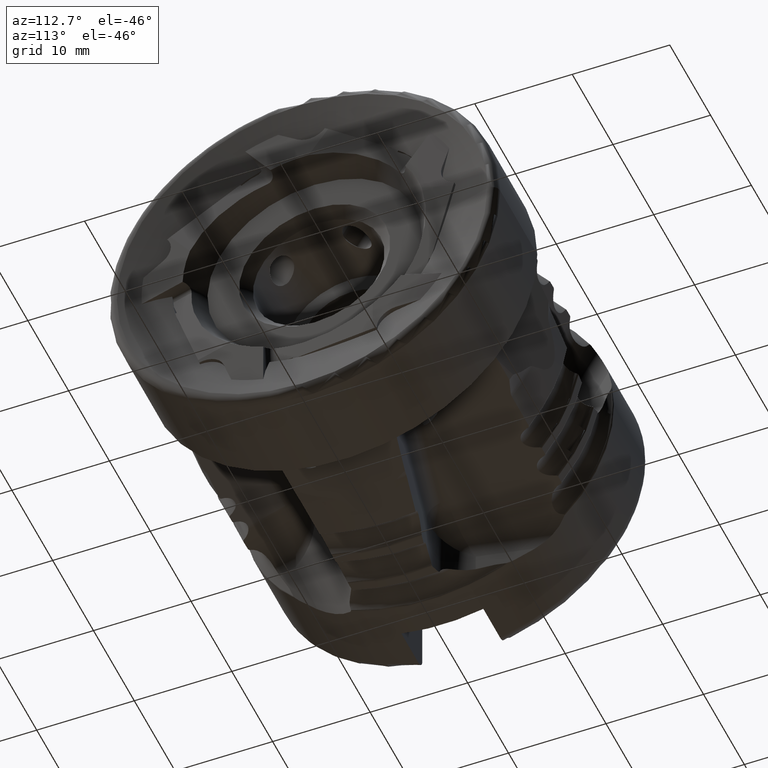
[diagram: clean part render]
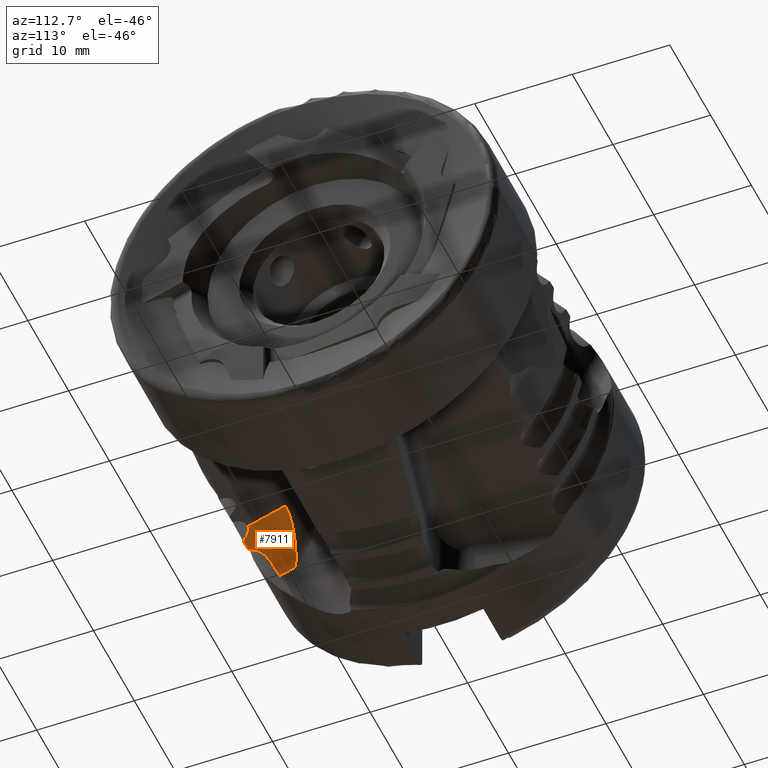
[diagram: same view with one face highlighted and labeled with its STEP entity id]
A machine part, auxiliary view. The second image highlights one B-rep face of the part: STEP entity #7911.
In plain terms, the highlighted cylindrical surface (partial cylindrical patch) has radius 3.94 mm, axis along (0, 0.9511, 0.309).
Its self-contained STEP definition (entity closure, byte-faithful):
#33 = CARTESIAN_POINT ( 'NONE',  ( -28.56440808432969500, -15.85264359010885300, -8.383159691719308500 ) ) ;
#153 = CARTESIAN_POINT ( 'NONE',  ( -26.41002967370479800, -17.33414100165144900, -7.779956795712893200 ) ) ;
#310 = CARTESIAN_POINT ( 'NONE',  ( -29.71508046417885400, -15.39688914835973700, -10.39244339586552400 ) ) ;
#627 = VERTEX_POINT ( 'NONE', #5507 ) ;
#710 = CARTESIAN_POINT ( 'NONE',  ( -26.25360595343298800, -17.09142602524426000, -7.681861429233998200 ) ) ;
#739 = CARTESIAN_POINT ( 'NONE',  ( -25.69751953581768700, -16.50883507427392200, -7.474238577948152200 ) ) ;
#839 = EDGE_CURVE ( 'NONE', #1136, #3382, #5505, .T. ) ;
#874 = CARTESIAN_POINT ( 'NONE',  ( -26.49059737205868000, -17.32876244822566400, -7.791918378227796500 ) ) ;
#892 = CARTESIAN_POINT ( 'NONE',  ( -28.19384683758306000, -16.12713403850896300, -8.148863625765258700 ) ) ;
#1109 = EDGE_CURVE ( 'NONE', #627, #1851, #8360, .T. ) ;
#1136 = VERTEX_POINT ( 'NONE', #7441 ) ;
#1226 = LINE ( 'NONE', #1905, #6155 ) ;
#1591 = CARTESIAN_POINT ( 'NONE',  ( -25.31579957513992700, -16.33219888893014400, -7.452534699864648000 ) ) ;
#1732 = CARTESIAN_POINT ( 'NONE',  ( -27.83836801739790800, -16.48063775773570700, -8.020539063007737100 ) ) ;
#1851 = VERTEX_POINT ( 'NONE', #874 ) ;
#1905 = CARTESIAN_POINT ( 'NONE',  ( -25.04200685546572600, -12.43006090190876000, -6.237559048921020200 ) ) ;
#1948 = CARTESIAN_POINT ( 'NONE',  ( -27.30940262794131000, -17.23456217364929800, -7.998116445927551300 ) ) ;
#1951 = ORIENTED_EDGE ( 'NONE', *, *, #1109, .F. ) ;
#2060 = B_SPLINE_CURVE_WITH_KNOTS ( 'NONE', 3,
 ( #8468, #153, #9294, #4330 ),
 .UNSPECIFIED., .F., .F.,
 ( 4, 4 ),
 ( 0.0000000000000000000, 0.0002414685924126771800 ),
 .UNSPECIFIED. ) ;
#2268 = CARTESIAN_POINT ( 'NONE',  ( -25.86117891728764600, -11.23913982927144100, -9.902837228251858200 ) ) ;
#2408 = CARTESIAN_POINT ( 'NONE',  ( -25.04200685546572600, -16.26758438887194900, -7.484446014591791900 ) ) ;
#2438 = CARTESIAN_POINT ( 'NONE',  ( -25.04200685546572600, -16.26758438887194900, -7.484446014591791900 ) ) ;
#2555 = CARTESIAN_POINT ( 'NONE',  ( -27.55584095093095300, -16.91427819999517400, -8.006200356239855200 ) ) ;
#2575 = CARTESIAN_POINT ( 'NONE',  ( -26.77178127052539800, -17.30999112111474900, -7.833664691850888300 ) ) ;
#2621 = VECTOR ( 'NONE', #5284, 1000.000000000000200 ) ;
#2705 = CARTESIAN_POINT ( 'NONE',  ( -27.46672835435777000, -17.15816956320676600, -8.042698445025383300 ) ) ;
#2753 = VERTEX_POINT ( 'NONE', #2438 ) ;
#2933 = EDGE_CURVE ( 'NONE', #2753, #1136, #1226, .T. ) ;
#3158 = LINE ( 'NONE', #310, #2621 ) ;
#3253 = ORIENTED_EDGE ( 'NONE', *, *, #10606, .F. ) ;
#3372 = CARTESIAN_POINT ( 'NONE',  ( -29.29694184732632300, -15.40317186882817200, -9.220043974572584800 ) ) ;
#3382 = VERTEX_POINT ( 'NONE', #8543 ) ;
#3766 = CARTESIAN_POINT ( 'NONE',  ( -27.29957011358394300, -12.57834576095208600, -5.781185179431049400 ) ) ;
#3895 = EDGE_CURVE ( 'NONE', #3382, #5923, #3158, .T. ) ;
#4118 = ORIENTED_EDGE ( 'NONE', *, *, #2933, .F. ) ;
#4187 = CARTESIAN_POINT ( 'NONE',  ( -29.01560462248664200, -15.57640309600516000, -8.823368280535987700 ) ) ;
#4330 = CARTESIAN_POINT ( 'NONE',  ( -26.30346826946338700, -17.21555464716109500, -7.728116105276432900 ) ) ;
#4573 = CARTESIAN_POINT ( 'NONE',  ( -29.71508046417885400, -13.33732755930416400, -9.723251269976598700 ) ) ;
#4690 = FACE_OUTER_BOUND ( 'NONE', #6844, .T. ) ;
#4751 = VERTEX_POINT ( 'NONE', #5289 ) ;
#4797 = AXIS2_PLACEMENT_3D ( 'NONE', #2268, #5576, #10622 ) ;
#4858 = CARTESIAN_POINT ( 'NONE',  ( -26.18656060110405200, -16.97723736621200900, -7.637705146737835600 ) ) ;
#5001 = CARTESIAN_POINT ( 'NONE',  ( -28.68561604439420900, -15.77545185990095300, -8.482927187743223700 ) ) ;
#5022 = ORIENTED_EDGE ( 'NONE', *, *, #839, .F. ) ;
#5078 = CARTESIAN_POINT ( 'NONE',  ( -26.49059737205868000, -17.32876244822566400, -7.791918378227796500 ) ) ;
#5239 = CARTESIAN_POINT ( 'NONE',  ( -27.49653173053660300, -17.07660100473089300, -8.030491795104882900 ) ) ;
#5284 = DIRECTION ( 'NONE',  ( 0.0000000000000000000, -0.9510565162951499800, -0.3090169943749582200 ) ) ;
#5289 = CARTESIAN_POINT ( 'NONE',  ( -27.49653173053660300, -17.07660100473089300, -8.030491795104882900 ) ) ;
#5505 =( BOUNDED_CURVE ( )  B_SPLINE_CURVE ( 3, ( #6309, #3766, #7071, #4573 ),
 .UNSPECIFIED., .F., .F. ) 
 B_SPLINE_CURVE_WITH_KNOTS ( ( 4, 4 ),
 ( 0.0000000000000000000, 1.570796326794896600 ),
 .UNSPECIFIED. ) 
 CURVE ( )  GEOMETRIC_REPRESENTATION_ITEM ( )  RATIONAL_B_SPLINE_CURVE ( ( 1.000000000000000000, 0.8047378541243649400, 0.8047378541243649400, 1.000000000000000000 ) ) 
 REPRESENTATION_ITEM ( '' )  );
#5507 = CARTESIAN_POINT ( 'NONE',  ( -27.30940262794131000, -17.23456217364929800, -7.998116445927551300 ) ) ;
#5576 = DIRECTION ( 'NONE',  ( 6.938893903907229900E-018, 0.9510565162951500900, 0.3090169943749582800 ) ) ;
#5596 = CARTESIAN_POINT ( 'NONE',  ( -27.04472003496497100, -17.27891996839832000, -7.902533044928529400 ) ) ;
#5631 = CARTESIAN_POINT ( 'NONE',  ( -27.30940262794131000, -17.23456217364929800, -7.998116445927551300 ) ) ;
#5712 = CARTESIAN_POINT ( 'NONE',  ( -25.91920433455497600, -16.67148883624067000, -7.523963017999100200 ) ) ;
#5809 = VERTEX_POINT ( 'NONE', #5893 ) ;
#5864 = CARTESIAN_POINT ( 'NONE',  ( -28.31978897849018000, -16.02757043797508600, -8.217008849992595300 ) ) ;
#5893 = CARTESIAN_POINT ( 'NONE',  ( -26.30346826946338700, -17.21555464716109500, -7.728116105276432900 ) ) ;
#5923 = VERTEX_POINT ( 'NONE', #6882 ) ;
#5955 = EDGE_CURVE ( 'NONE', #4751, #627, #10659, .T. ) ;
#6126 = B_SPLINE_CURVE_WITH_KNOTS ( 'NONE', 3,
 ( #6661, #7464, #8323, #3372, #9147, #4187, #10013, #5001, #33, #5864, #892, #6694, #1732, #7534, #2555, #8358 ),
 .UNSPECIFIED., .F., .F.,
 ( 4, 2, 2, 2, 2, 2, 2, 4 ),
 ( 1.394332055349943800E-014, 0.001025636434939571500, 0.001538454652402380000, 0.002051272869865188800, 0.002564091087327997400, 0.003076909304790805900, 0.003589727522253614500, 0.004102545739716423500 ),
 .UNSPECIFIED. ) ;
#6155 = VECTOR ( 'NONE', #7717, 1000.000000000000100 ) ;
#6309 = CARTESIAN_POINT ( 'NONE',  ( -25.04200685546572600, -12.43006090190876000, -6.237559048921020200 ) ) ;
#6459 = ORIENTED_EDGE ( 'NONE', *, *, #8573, .F. ) ;
#6472 = B_SPLINE_CURVE_WITH_KNOTS ( 'NONE', 3,
 ( #6525, #710, #4858, #10731, #5712, #739, #6562, #1591, #7390, #2408 ),
 .UNSPECIFIED., .F., .F.,
 ( 4, 2, 2, 2, 4 ),
 ( 9.998871477600455200E-016, 0.0004185826210413052700, 0.0008371652420816105700, 0.001255747863121915900, 0.001674330484162221300 ),
 .UNSPECIFIED. ) ;
#6525 = CARTESIAN_POINT ( 'NONE',  ( -26.30346826946338700, -17.21555464716109500, -7.728116105276432900 ) ) ;
#6562 = CARTESIAN_POINT ( 'NONE',  ( -25.57324348054370600, -16.43960955887332200, -7.458647222087585700 ) ) ;
#6645 = ORIENTED_EDGE ( 'NONE', *, *, #8070, .F. ) ;
#6661 = CARTESIAN_POINT ( 'NONE',  ( -29.71508046417590900, -14.96583904217732400, -10.25238672628900900 ) ) ;
#6694 = CARTESIAN_POINT ( 'NONE',  ( -27.95260830680139800, -16.35423733667023400, -8.050562472753190600 ) ) ;
#6844 = EDGE_LOOP ( 'NONE', ( #6645, #10067, #5022, #4118, #3253, #6459, #1951, #10699 ) ) ;
#6882 = CARTESIAN_POINT ( 'NONE',  ( -29.71508046417590900, -14.96583904217732400, -10.25238672628900900 ) ) ;
#6920 = CARTESIAN_POINT ( 'NONE',  ( -27.39077238235823600, -17.22092552748907900, -8.027501067629231100 ) ) ;
#7071 = CARTESIAN_POINT ( 'NONE',  ( -29.23522058028070000, -12.95414791513416500, -7.225006171650663900 ) ) ;
#7390 = CARTESIAN_POINT ( 'NONE',  ( -25.17950311355170000, -16.29240534794355000, -7.461781080045724000 ) ) ;
#7441 = CARTESIAN_POINT ( 'NONE',  ( -25.04200685546572600, -12.43006090190876000, -6.237559048921020200 ) ) ;
#7464 = CARTESIAN_POINT ( 'NONE',  ( -29.64377987139411300, -15.11771278107118700, -9.949027941228235900 ) ) ;
#7534 = CARTESIAN_POINT ( 'NONE',  ( -27.63799013213904800, -16.76370086250256000, -7.998353240216551400 ) ) ;
#7717 = DIRECTION ( 'NONE',  ( 6.938893903907229900E-018, 0.9510565162951499800, 0.3090169943749582800 ) ) ;
#7911 = ADVANCED_FACE ( 'NONE', ( #4690 ), #8861, .F. ) ;
#8070 = EDGE_CURVE ( 'NONE', #5923, #4751, #6126, .T. ) ;
#8323 = CARTESIAN_POINT ( 'NONE',  ( -29.53001696970397600, -15.23330415017765200, -9.647756524767569200 ) ) ;
#8358 = CARTESIAN_POINT ( 'NONE',  ( -27.49653173053660300, -17.07660100473089300, -8.030491795104882900 ) ) ;
#8360 = B_SPLINE_CURVE_WITH_KNOTS ( 'NONE', 3,
 ( #5631, #5596, #2575, #5078 ),
 .UNSPECIFIED., .F., .F.,
 ( 4, 4 ),
 ( 0.0000000000000000000, 0.0008496077812228384300 ),
 .UNSPECIFIED. ) ;
#8468 = CARTESIAN_POINT ( 'NONE',  ( -26.49059737205868000, -17.32876244822566400, -7.791918378227796500 ) ) ;
#8543 = CARTESIAN_POINT ( 'NONE',  ( -29.71508046417885400, -13.33732755930416400, -9.723251269976598700 ) ) ;
#8573 = EDGE_CURVE ( 'NONE', #1851, #5809, #2060, .T. ) ;
#8861 = CYLINDRICAL_SURFACE ( 'NONE', #4797, 3.940000000000000400 ) ;
#9147 = CARTESIAN_POINT ( 'NONE',  ( -29.20847049996401500, -15.45929966692578700, -9.081462856586298900 ) ) ;
#9294 = CARTESIAN_POINT ( 'NONE',  ( -26.33223137907665300, -17.28715832390102800, -7.754798145405621800 ) ) ;
#10013 = CARTESIAN_POINT ( 'NONE',  ( -28.91074740479883700, -15.63766121752908900, -8.702874964109820900 ) ) ;
#10067 = ORIENTED_EDGE ( 'NONE', *, *, #3895, .F. ) ;
#10606 = EDGE_CURVE ( 'NONE', #5809, #2753, #6472, .T. ) ;
#10622 = DIRECTION ( 'NONE',  ( 0.0000000000000000000, -0.3090169943749582200, 0.9510565162951500900 ) ) ;
#10659 = B_SPLINE_CURVE_WITH_KNOTS ( 'NONE', 3,
 ( #5239, #2705, #6920, #1948 ),
 .UNSPECIFIED., .F., .F.,
 ( 4, 4 ),
 ( 8.709970391202742400E-017, 0.0002590790395180304500 ),
 .UNSPECIFIED. ) ;
#10699 = ORIENTED_EDGE ( 'NONE', *, *, #5955, .F. ) ;
#10731 = CARTESIAN_POINT ( 'NONE',  ( -26.01901122462317800, -16.76636937816065000, -7.558366480687789500 ) ) ;